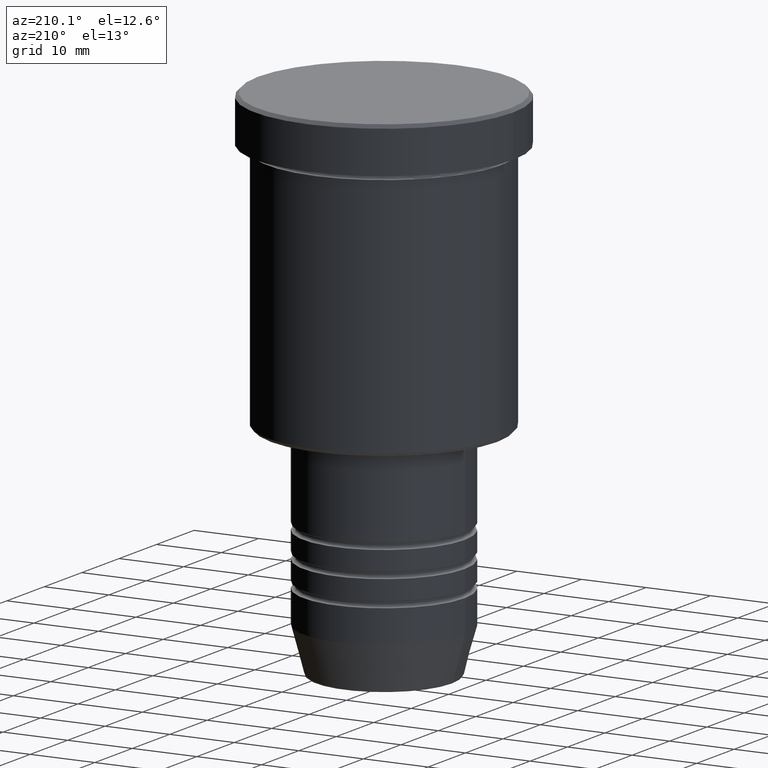
[diagram: clean part render]
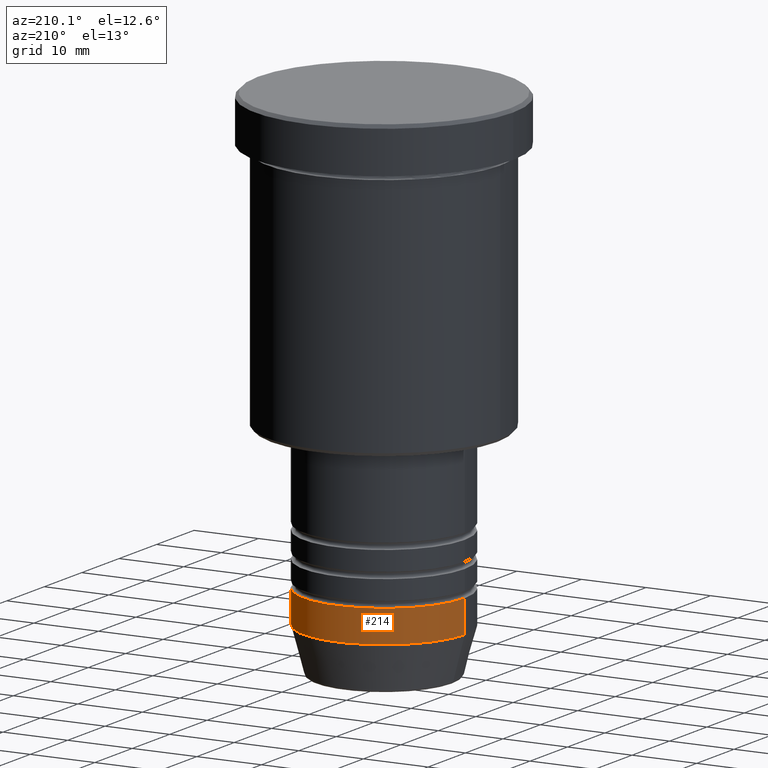
[diagram: same view with one face highlighted and labeled with its STEP entity id]
A machine part, auxiliary view. The second image highlights one B-rep face of the part: STEP entity #214.
In plain terms, the highlighted cylindrical surface (partial cylindrical patch) has radius 12.5 mm, axis along (-0, -0, 1).
Its self-contained STEP definition (entity closure, byte-faithful):
#9 = EDGE_CURVE ( 'NONE', #418, #1011, #1119, .T. ) ;
#23 = DIRECTION ( 'NONE',  ( -0.000000000000000000, -0.000000000000000000, 1.000000000000000000 ) ) ;
#52 = FACE_OUTER_BOUND ( 'NONE', #1086, .T. ) ;
#60 = DIRECTION ( 'NONE',  ( -0.000000000000000000, -0.000000000000000000, 1.000000000000000000 ) ) ;
#131 = ORIENTED_EDGE ( 'NONE', *, *, #758, .T. ) ;
#142 = CYLINDRICAL_SURFACE ( 'NONE', #1149, 12.50000000000000000 ) ;
#158 = CARTESIAN_POINT ( 'NONE',  ( 12.50000000000000000, 0.000000000000000000, -73.00000000000001421 ) ) ;
#214 = ADVANCED_FACE ( 'NONE', ( #52 ), #142, .T. ) ;
#215 = CARTESIAN_POINT ( 'NONE',  ( -12.50000000000000000, 1.530808498934191521E-15, 0.000000000000000000 ) ) ;
#217 = CARTESIAN_POINT ( 'NONE',  ( 12.50000000000000000, 0.000000000000000000, 0.000000000000000000 ) ) ;
#313 = CIRCLE ( 'NONE', #581, 12.50000000000000000 ) ;
#320 = DIRECTION ( 'NONE',  ( -0.000000000000000000, -0.000000000000000000, 1.000000000000000000 ) ) ;
#328 = DIRECTION ( 'NONE',  ( 1.000000000000000000, 0.000000000000000000, 0.000000000000000000 ) ) ;
#342 = CARTESIAN_POINT ( 'NONE',  ( 0.000000000000000000, 0.000000000000000000, -68.00000000000000000 ) ) ;
#391 = AXIS2_PLACEMENT_3D ( 'NONE', #342, #60, #1068 ) ;
#405 = VERTEX_POINT ( 'NONE', #158 ) ;
#418 = VERTEX_POINT ( 'NONE', #1054 ) ;
#426 = VECTOR ( 'NONE', #23, 1000.000000000000000 ) ;
#534 = DIRECTION ( 'NONE',  ( -0.000000000000000000, -0.000000000000000000, 1.000000000000000000 ) ) ;
#543 = CIRCLE ( 'NONE', #391, 12.50000000000000000 ) ;
#577 = ORIENTED_EDGE ( 'NONE', *, *, #9, .T. ) ;
#581 = AXIS2_PLACEMENT_3D ( 'NONE', #712, #534, #328 ) ;
#614 = VERTEX_POINT ( 'NONE', #861 ) ;
#696 = EDGE_CURVE ( 'NONE', #405, #614, #943, .T. ) ;
#712 = CARTESIAN_POINT ( 'NONE',  ( 0.000000000000000000, 0.000000000000000000, -73.00000000000001421 ) ) ;
#752 = ORIENTED_EDGE ( 'NONE', *, *, #696, .F. ) ;
#758 = EDGE_CURVE ( 'NONE', #405, #418, #313, .T. ) ;
#780 = CARTESIAN_POINT ( 'NONE',  ( 0.000000000000000000, 0.000000000000000000, 0.000000000000000000 ) ) ;
#802 = ORIENTED_EDGE ( 'NONE', *, *, #830, .F. ) ;
#830 = EDGE_CURVE ( 'NONE', #614, #1011, #543, .T. ) ;
#861 = CARTESIAN_POINT ( 'NONE',  ( 12.50000000000000000, 0.000000000000000000, -68.00000000000000000 ) ) ;
#868 = VECTOR ( 'NONE', #1178, 1000.000000000000000 ) ;
#873 = DIRECTION ( 'NONE',  ( 1.000000000000000000, 0.000000000000000000, 0.000000000000000000 ) ) ;
#943 = LINE ( 'NONE', #217, #426 ) ;
#1011 = VERTEX_POINT ( 'NONE', #1171 ) ;
#1054 = CARTESIAN_POINT ( 'NONE',  ( -12.50000000000000000, 1.530808498934191521E-15, -73.00000000000001421 ) ) ;
#1068 = DIRECTION ( 'NONE',  ( 1.000000000000000000, 0.000000000000000000, 0.000000000000000000 ) ) ;
#1086 = EDGE_LOOP ( 'NONE', ( #131, #577, #802, #752 ) ) ;
#1119 = LINE ( 'NONE', #215, #868 ) ;
#1149 = AXIS2_PLACEMENT_3D ( 'NONE', #780, #320, #873 ) ;
#1171 = CARTESIAN_POINT ( 'NONE',  ( -12.50000000000000000, 1.530808498934191521E-15, -68.00000000000000000 ) ) ;
#1178 = DIRECTION ( 'NONE',  ( -0.000000000000000000, -0.000000000000000000, 1.000000000000000000 ) ) ;